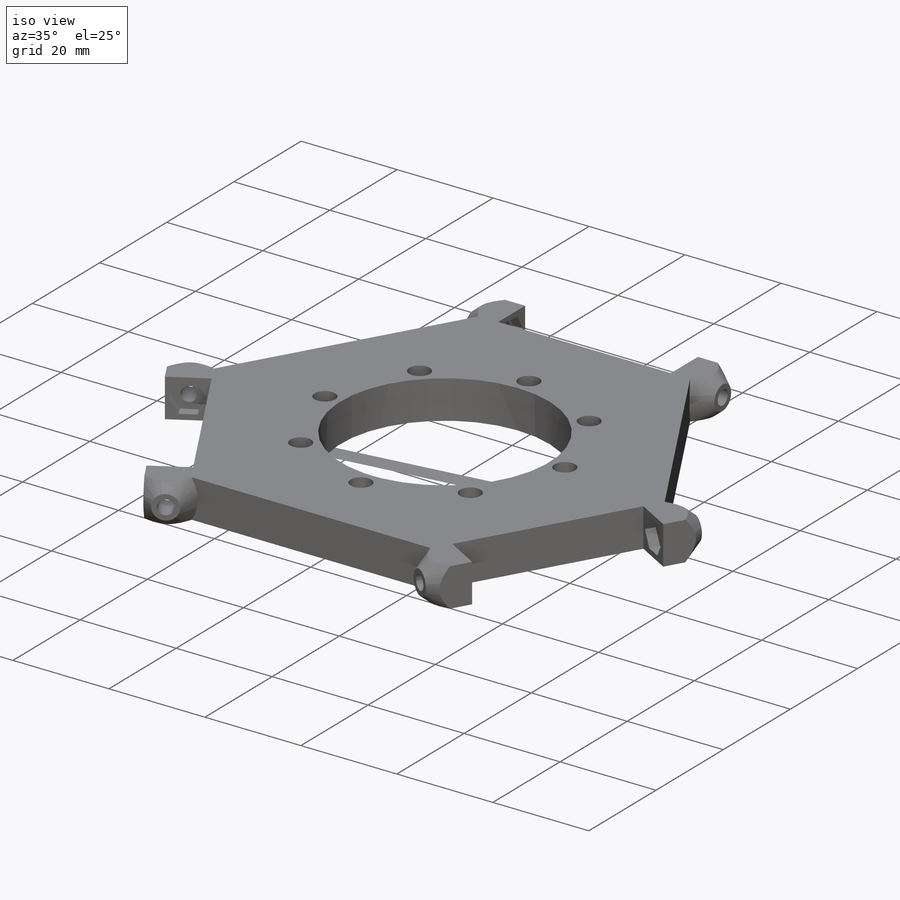
[diagram: iso view]
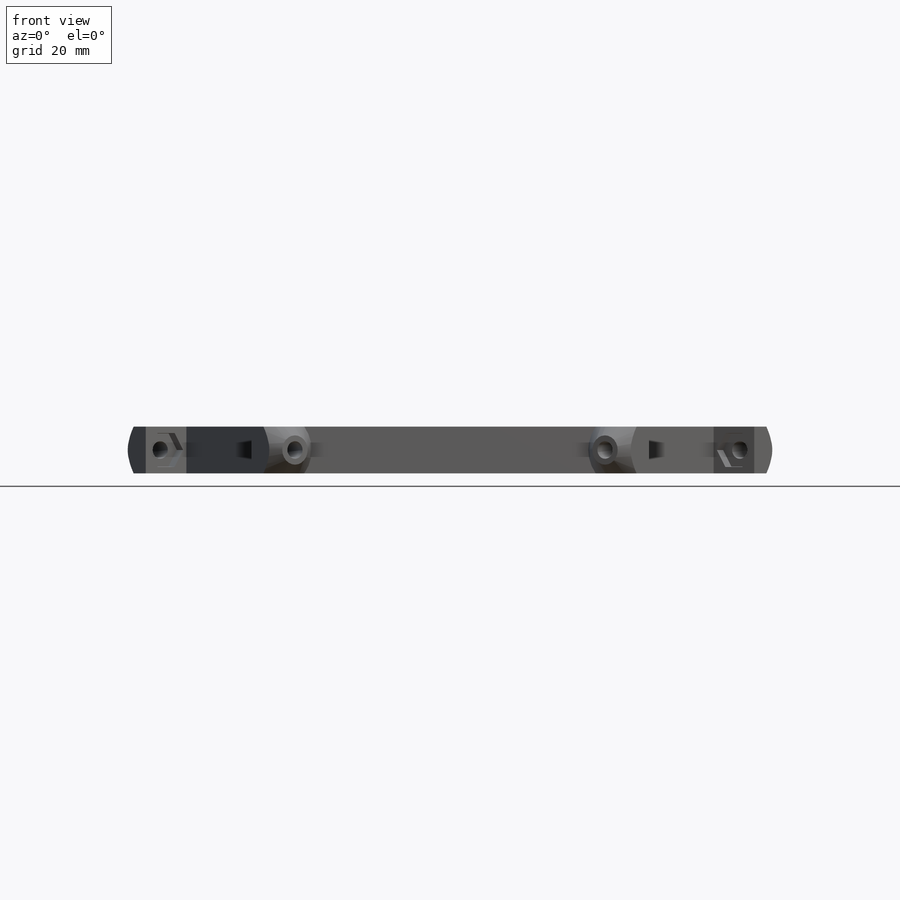
[diagram: front view]
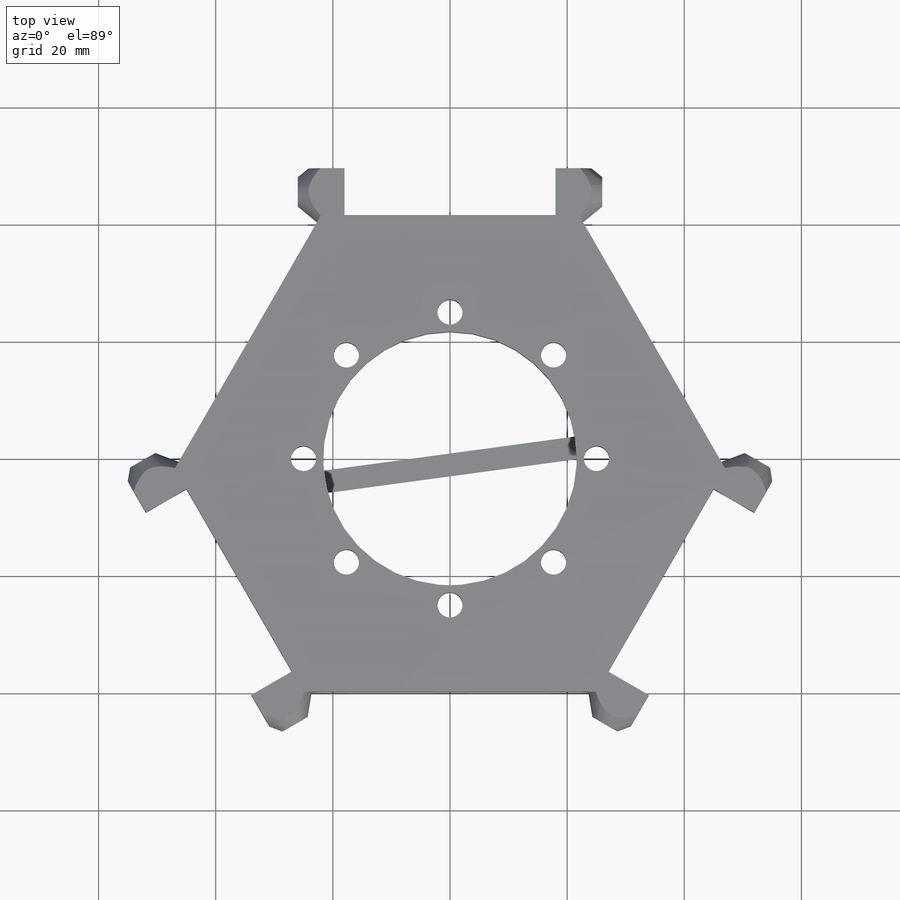
[diagram: top view]
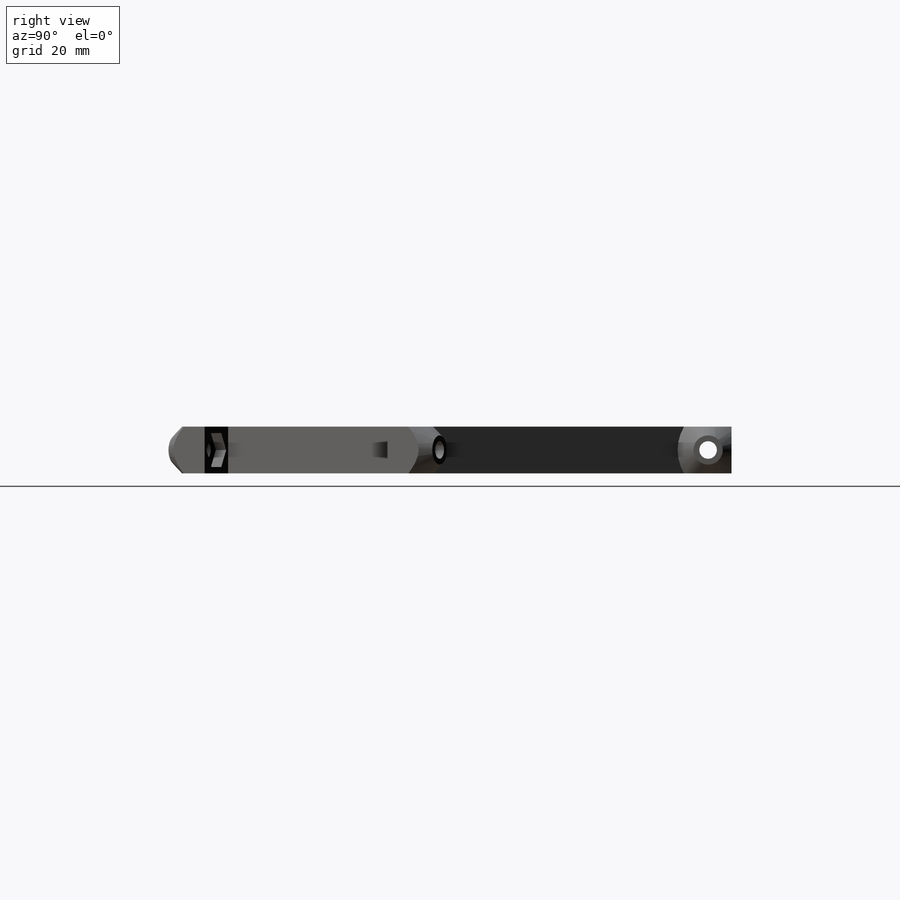
[diagram: right view]
SOLIDWORKS PART (.sldprt)
format: sldprt  version: not decoded by parser v0  size: 521,216 bytes
history: native  units: mm
features: sketch x8, extrude x2, plane x2, cut_extrude x2, material x1, cut_revolve x1, mirror x1, pattern_circular x1 (+13 scaffold rows collapsed)
feature tree (31):
  scaffold x13  (default folders/planes/origin — collapsed)
  material  "ABS"
  sketch  "Sketch12"  dims[D1=45.87mm]
  sketch  "Sketch1"  dims[c1.D1=40.0mm c1.D5=43.0mm c1.D6=~2.593166mm c1.D7=3.2mm c1.D8=3.2mm c2.D6=50.0mm c2.D7=4.2mm c2.D8=3.2mm c2.D9=3.2mm c2.D10=3.2mm c2.D11=3.2mm c2.D13=2.4mm c2.D14=2.4mm c2.D15=2.4mm c2.D16=2.4mm c2.D17=2.4mm c2.D18=2.4mm c2.D19=3.2mm c2.D20=2.4mm c3.D18=2.4mm c3.D5=50.0mm c3.D6=4.2mm c3.D7=4.3mm c3.D1=~16.92148mm c4.D1=120.0deg c4.D2=~10.019171mm c5.D2=120.0deg c5.D3=~10.256981mm c6.D3=120.0deg c6.D4=~17.353714mm c7.D4=120.0deg c8.D4=~20.344414mm c9.D4=120.0deg c10.D4=~20.344414mm c11.D4=120.0deg c12.D4=~20.344414mm c12.D2=~23.491706mm c13.D2=120.0deg c14.D2=44.0mm c14.D4=50.0mm c14.D3=52.0mm c15.D3=120.0deg c15.D5=~29.444864mm c15.D7=~6.350853mm c15.D8=8.0mm c15.D9=~7.549789mm c15.D6=17.0mm c16.D8=17.0mm c16.D9=5.0mm c16.D10=26.0mm c16.D11=13.0mm c16.D14=4.0mm c16.D15=10.0mm c16.D16=10.0mm c16.D17=4.0mm c16.D18=4.0mm c16.D19=26.0mm c16.D20=~8.000255mm c17.D18=4.0mm c17.D19=10.0mm c17.D6=25.0mm c17.D7=25.0mm c18.D7=~19.008771deg c19.D7=25.0mm c20.D7=135.0deg c20.D8=25.0mm c21.D8=135.0deg c21.D5=50.0mm c21.D6=50.0mm]
  extrude  "Boss-Extrude1"  Depth=8mm
  plane  "Plane2"  Offset=8mm
  sketch  "Sketch4"  dims[D1=8.0mm D2=52.0mm D3=26.0mm]
  extrude  "Boss-Extrude2"  Depth=14mm
  plane  "Plane3"  Offset=4mm
  sketch  "Sketch5"  dims[D1=2.5mm D2=14.0mm D3=14.0mm D4=1.5mm]
  cut_revolve  "Cut-Revolve8"  Angle=360deg
  sketch  "Sketch6"  dims[D1=3.0mm]
  cut_extrude  "Cut-Extrude1"  [1 undecoded]
  sketch  "Sketch7"  dims[D1=5.8mm]
  cut_extrude  "Cut-Extrude2"  Depth=2mm
  mirror  "Mirror1"
  pattern_circular  "CirPattern3"  Count=3 Angle=360deg
  sketch  "Sketch10"  dims[D1=22.3mm D2=30.0mm D3=35.0mm D4=28.85mm]
  sketch  "Sketch11"  dims[D1=40.0mm]
decode coverage: 13 of 15 modeling features carry decoded parameters
note: ~ marks probable driven/reference dimensions
note: 1 parameter value undecoded
note: suppression state not decoded; provenance and decode notes live in map.json
